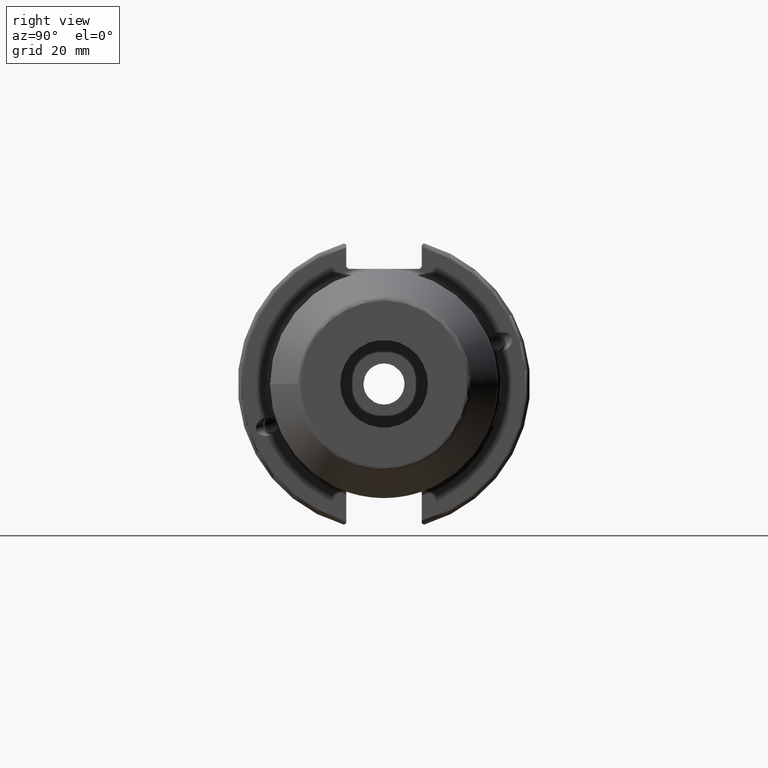
[diagram: clean part render]
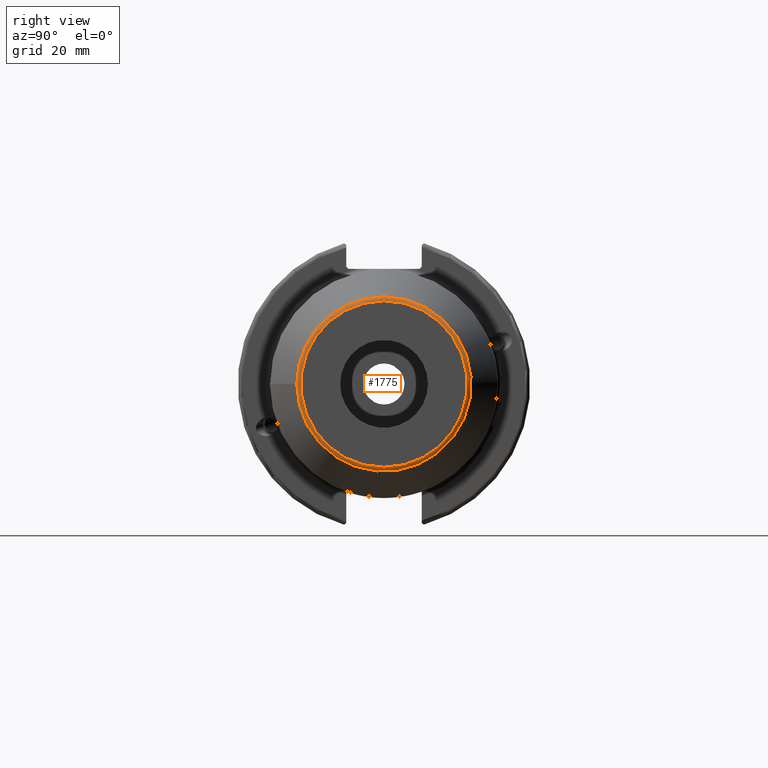
[diagram: same view with one face highlighted and labeled with its STEP entity id]
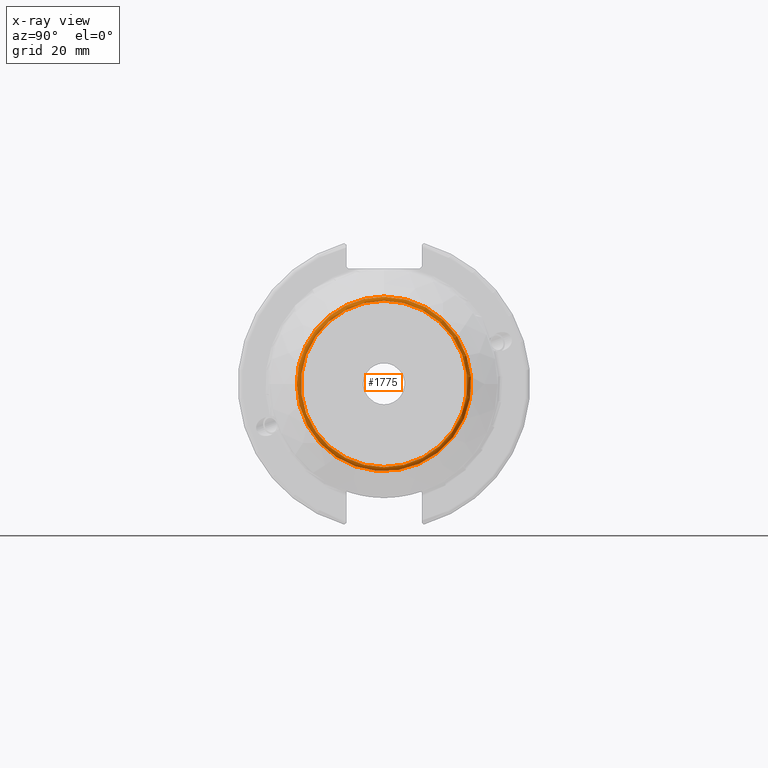
[diagram: x-ray of the same camera — body ghosted, the highlighted face saturated]
A machine part, right view. The second image highlights one B-rep face of the part: STEP entity #1775.
The next image is the same camera in x-ray: the body ghosted, the highlighted face saturated — about 0% of this face is hidden behind the body in this view.
In plain terms, the highlighted toroidal blend (fillet) surface has major radius 18.0726 mm and minor (blend) radius 1 mm.
Its self-contained STEP definition (entity closure, byte-faithful):
#384=FACE_OUTER_BOUND('',#488,.T.);
#488=EDGE_LOOP('',(#1286,#1287,#1288,#1289,#1290));
#638=CIRCLE('',#1951,18.0726497308104);
#639=CIRCLE('',#1952,1.);
#640=CIRCLE('',#1953,18.9386751345948);
#641=CIRCLE('',#1954,18.9386751345948);
#753=VERTEX_POINT('',#2894);
#754=VERTEX_POINT('',#2896);
#755=VERTEX_POINT('',#2898);
#955=EDGE_CURVE('',#753,#753,#638,.T.);
#956=EDGE_CURVE('',#753,#754,#639,.T.);
#957=EDGE_CURVE('',#754,#755,#640,.T.);
#958=EDGE_CURVE('',#755,#754,#641,.T.);
#1286=ORIENTED_EDGE('',*,*,#955,.T.);
#1287=ORIENTED_EDGE('',*,*,#956,.T.);
#1288=ORIENTED_EDGE('',*,*,#957,.T.);
#1289=ORIENTED_EDGE('',*,*,#958,.T.);
#1290=ORIENTED_EDGE('',*,*,#956,.F.);
#1747=TOROIDAL_SURFACE('',#1950,18.0726497308104,1.);
#1775=ADVANCED_FACE('',(#384),#1747,.T.);
#1950=AXIS2_PLACEMENT_3D('',#2893,#2272,#2273);
#1951=AXIS2_PLACEMENT_3D('',#2895,#2274,#2275);
#1952=AXIS2_PLACEMENT_3D('',#2897,#2276,#2277);
#1953=AXIS2_PLACEMENT_3D('',#2899,#2278,#2279);
#1954=AXIS2_PLACEMENT_3D('',#2900,#2280,#2281);
#2272=DIRECTION('center_axis',(1.,0.,0.));
#2273=DIRECTION('ref_axis',(0.,0.,-1.));
#2274=DIRECTION('center_axis',(-1.,0.,0.));
#2275=DIRECTION('ref_axis',(0.,-1.,1.83697019872103E-16));
#2276=DIRECTION('center_axis',(0.,-1.,-1.22464679914735E-16));
#2277=DIRECTION('ref_axis',(0.,-1.22464679914735E-16,1.));
#2278=DIRECTION('center_axis',(1.,0.,0.));
#2279=DIRECTION('ref_axis',(0.,-1.,3.06161699786838E-17));
#2280=DIRECTION('center_axis',(1.,0.,0.));
#2281=DIRECTION('ref_axis',(0.,-1.,3.06161699786838E-17));
#2893=CARTESIAN_POINT('Origin',(63.,0.,0.));
#2894=CARTESIAN_POINT('',(64.,-2.21326126449482E-15,18.0726497308104));
#2895=CARTESIAN_POINT('Origin',(64.,0.,0.));
#2896=CARTESIAN_POINT('',(63.5,-2.31931878836731E-15,18.9386751345948));
#2897=CARTESIAN_POINT('Origin',(63.,-2.21326126449482E-15,18.0726497308104));
#2898=CARTESIAN_POINT('',(63.5,-18.9386751345948,-2.31931878836731E-15));
#2899=CARTESIAN_POINT('Origin',(63.5,0.,-2.89914848545914E-15));
#2900=CARTESIAN_POINT('Origin',(63.5,0.,-2.89914848545914E-15));